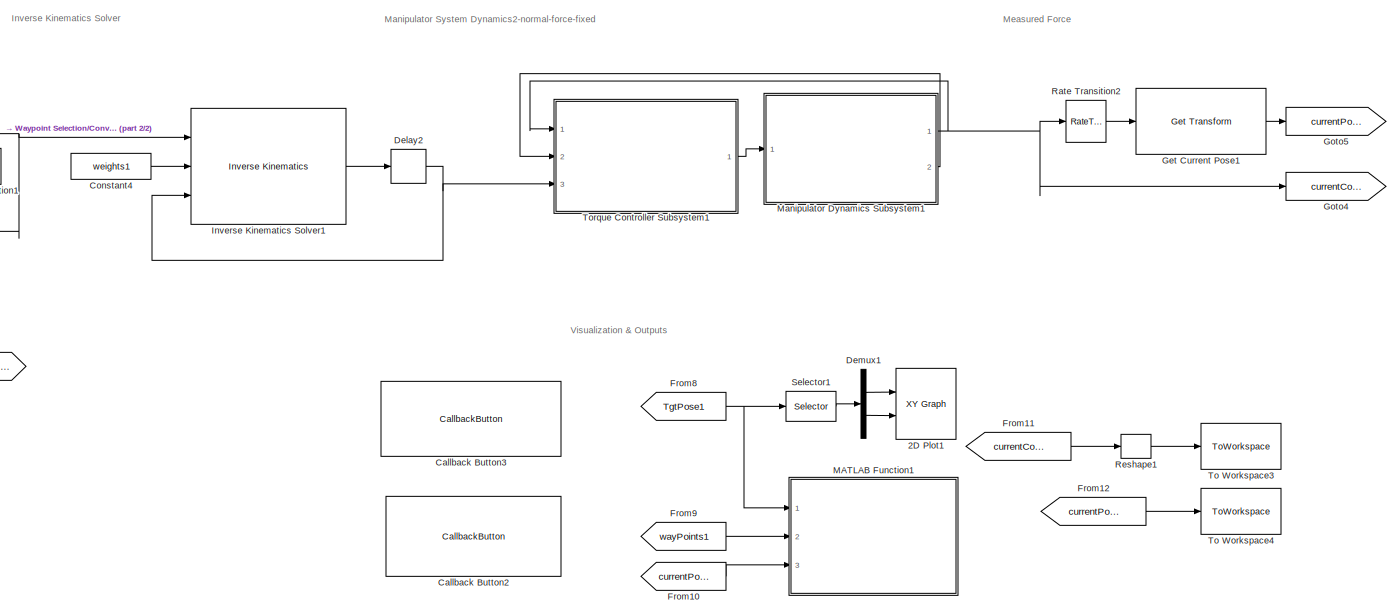
[diagram: root canvas - part 1/2, right side, full height]
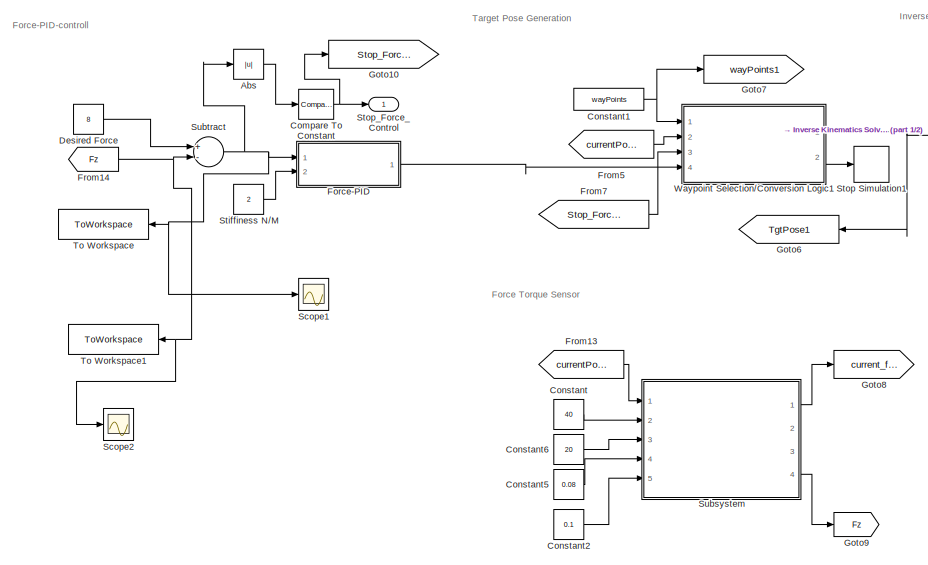
[diagram: root canvas - part 2/2, left side, full height]
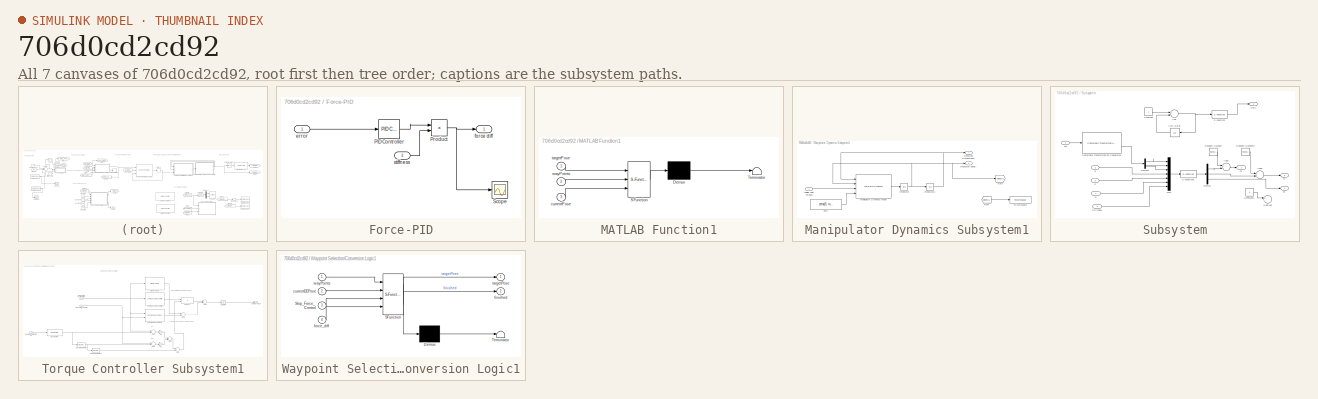
[diagram: thumbnail index - all 7 canvases of the model, root first then tree order]
MODEL slx_706d0cd2cd92
KIND model
CONFIG AbsTol = auto
CONFIG EnableMultiTasking = off
CONFIG FixedStep = Ts
CONFIG MaxStep = auto
CONFIG MinStep = auto
CONFIG PostLoadFcn = robot=importrobot('demo.urdf');\nrobot.DataFormat = 'column';\n\nI = imread('coins.png');\nimageOrigin = [40,20,0.08];\nscale = .15;\n
CONFIG RelTol = 1e-3
CONFIG SampleTimeConstraint = Unconstrained
CONFIG Solver = ode3
CONFIG SolverName = ode3
CONFIG StartTime = 0.0
CONFIG StopTime = 20
WORKSPACE source: mxarray member
WORKSPACE I = [49 47 48 48 48 48 48 51 50 51 50 47 ... (73800 elements, 246x300)]
WORKSPACE Ts = 0.01
WORKSPACE filterConst = 0.08
WORKSPACE force_range = [0.8 0.9]
WORKSPACE imageOrigin = [0.4 0.2 0.08]
WORKSPACE initTargetPose = [-1 0 -1.22464679915e-16 0 0 1 0 0 1.22464679915e-16 0 -1 0 ... (16 elements, 4x4)]
WORKSPACE q0 = [0.422405030154 0 -1.22880122285 0]
WORKSPACE robot: robotics.RigidBodyTree (value not decoded)
WORKSPACE scale = 0.0015
WORKSPACE wayPoints = [0 0 0 0 0 0 0 0 0 0 0 0 ... (1212 elements, 202x6)]
WORKSPACE weights = [1 1 1 1]
WORKSPACE weights1 = [1 1 1 1 1 1]
BLOCK [Reference] 2D Plot1  REF=simulink/Sinks/XY Graph
  Ports = [2]
  SourceBlock = simulink/Sinks/XY Graph
  SourceProductBaseCode = SL
  SourceProductName = Simulink
  SourceType = XY scope.
BLOCK [Abs] Abs
  SaturateOnIntegerOverflow = off
BLOCK [CallbackButton] Callback Button2
  ButtonText = Show Image Processing Used for Waypoint Generation
  ClickFcn = f1 = figure(1);\nf1.Position = [158 253 953 335];\nI1 = imread('coins.png');\nI2 = imread('coinBoundaries.png');\n\nsubplot(1,2,1)\nimshow(I1, 'Border', 'tight')\ntitle('Original Image')\n\nsubplot(1,2,2)\nimshow(I2, 'Border', 'tight')\ntitle('Processed Image with Boundary Detection')
BLOCK [CallbackButton] Callback Button3
  ButtonText = Visualize Model Output with Manipulator Mesh
  ClickFcn = if exist('jointData1', 'var') \n    exampleHelperVisualizeIK(I, jointData1, poseData1, sawyer, imageOrigin, scale);\nelse\n    sim(gcs)\n    exampleHelperVisualizeIK(I, jointData1, poseData1, sawyer, imageOrigin, scale);\nend
BLOCK [Reference] Compare To Constant  REF=simulink/Logic and Bit
Operations/Compare
To Constant
  Ports = [1, 1]
  SourceBlock = simulink/Logic and Bit\nOperations/Compare\nTo Constant
  SourceProductBaseCode = SL
  SourceProductName = Simulink
  SourceType = Compare To Constant
BLOCK [Constant] Constant
  Value = 40
BLOCK [Constant] Constant1
  Value = wayPoints
BLOCK [Constant] Constant2
  Value = 0.1
BLOCK [Constant] Constant4
  Value = weights1
BLOCK [Constant] Constant5
  Value = 0.08
BLOCK [Constant] Constant6
  Value = 20
BLOCK [Delay] Delay2
  DelayLength = 1
  InitialCondition = q0
  InputPortMap = u0
  Ports = [1, 1]
BLOCK [Demux] Demux1
  DisplayOption = bar
  Outputs = 2
  Ports = [1, 2]
BLOCK [Constant] Desired Force
  Value = 8
BLOCK [SubSystem] Force-PID
  Ports = [2, 1]
  RequestExecContextInheritance = off
  TreatAsAtomicUnit = on
BLOCK [Reference] Force-PID/PID Controller  REF=simulink/Continuous/PID Controller
  Ports = [1, 1]
  SourceBlock = simulink/Continuous/PID Controller
  SourceProductBaseCode = SL
  SourceProductName = Simulink
  SourceType = PID 1dof
BLOCK [Product] Force-PID/Product
  InputSameDT = off
  OutDataTypeStr = Inherit: Inherit via internal rule
  Ports = [2, 1]
  RndMeth = Floor
  SaturateOnIntegerOverflow = off
BLOCK [Scope] Force-PID/Scope
  Floating = off
  NumInputPorts = 1
  Ports = [1]
  ScopeSpecificationString = Simulink.scopes.TimeScopeBlockCfg('CurrentConfiguration', extmgr.ConfigurationSet(extmgr.Configuration('Core','General UI',true),extmgr.Configuration('Core','Source UI',true),extmgr.Configuration('Sources','WiredSimulink',true,'DataLoggingVariableName','ScopeData1'),extmgr.Configuration('Visuals','Time Domain',true,'SerializedDisplays',{struct('MinYLimReal','-11.94328','MaxYLimReal','107.96905','Y...<+1409ch>
BLOCK [Inport] Force-PID/error
  IconDisplay = Port number
BLOCK [Outport] Force-PID/force diff
  IconDisplay = Port number
BLOCK [Inport] Force-PID/stiffness
  IconDisplay = Port number
  Port = 2
BLOCK [From] From10
  GotoTag = currentPose1
BLOCK [From] From11
  GotoTag = currentConfig1
BLOCK [From] From12
  GotoTag = currentPose1
BLOCK [From] From13
  GotoTag = currentPose1
BLOCK [From] From14
  GotoTag = Fz
  TagVisibility = global
BLOCK [From] From5
  GotoTag = currentPose1
BLOCK [From] From7
  GotoTag = Stop_Force_Control
BLOCK [From] From8
  GotoTag = TgtPose1
BLOCK [From] From9
  GotoTag = wayPoints1
BLOCK [Reference] Get Current Pose1  REF=robotmaniplib/Get Transform
  Ports = [1, 1]
  SourceBlock = robotmaniplib/Get Transform
  SourceProductBaseCode = RO
  SourceProductName = Robotics System Toolbox
  SourceType = Get Transform
BLOCK [Goto] Goto10
  GotoTag = Stop_Force_Control
BLOCK [Goto] Goto4
  GotoTag = currentConfig1
BLOCK [Goto] Goto5
  GotoTag = currentPose1
BLOCK [Goto] Goto6
  GotoTag = TgtPose1
BLOCK [Goto] Goto7
  GotoTag = wayPoints1
BLOCK [Goto] Goto8
  GotoTag = current_force
  TagVisibility = global
BLOCK [Goto] Goto9
  GotoTag = Fz
  TagVisibility = global
BLOCK [Reference] Inverse Kinematics Solver1  REF=robotmaniplib/Inverse Kinematics
  Ports = [3, 1]
  SourceBlock = robotmaniplib/Inverse Kinematics
  SourceProductBaseCode = RO
  SourceProductName = Robotics System Toolbox
  SourceType = Inverse Kinematics
BLOCK [SubSystem] MATLAB Function1
  ErrorFcn = Stateflow.Translate.translate
  PermitHierarchicalResolution = ExplicitOnly
  Ports = [3]
  RequestExecContextInheritance = off
  SFBlockType = MATLAB Function
  SystemSampleTime = .1
  TreatAsAtomicUnit = on
BLOCK [Demux] MATLAB Function1/ Demux 
  Outputs = 1
  Ports = [1, 1]
BLOCK [S-Function] MATLAB Function1/ SFunction 
  EnableBusSupport = on
  FunctionName = sf_sfun
  PortCounts = [3 1]
  Ports = [3, 1]
  SFcnIsStateOwnerBlock = off
  SFunctionDeploymentMode = off
  Tag = Stateflow S-Function 4
BLOCK [Terminator] MATLAB Function1/ Terminator 
BLOCK [Inport] MATLAB Function1/currentPose
  IconDisplay = Port number
  Port = 3
BLOCK [Inport] MATLAB Function1/targetPose
  IconDisplay = Port number
BLOCK [Inport] MATLAB Function1/wayPoints
  IconDisplay = Port number
  Port = 2
BLOCK [SubSystem] Manipulator Dynamics Subsystem1
  Ports = [1, 2]
  RequestExecContextInheritance = off
BLOCK [Inport] Manipulator Dynamics Subsystem1/Applied Joint Torques
  IconDisplay = Port number
BLOCK [From] Manipulator Dynamics Subsystem1/From
  GotoTag = Velocity1
BLOCK [Goto] Manipulator Dynamics Subsystem1/Goto
  GotoTag = Velocity1
BLOCK [Integrator] Manipulator Dynamics Subsystem1/Integrator
  Ports = [1, 1]
BLOCK [Integrator] Manipulator Dynamics Subsystem1/Integrator1
  InitialCondition = q0
  Ports = [1, 1]
BLOCK [Reference] Manipulator Dynamics Subsystem1/Manipulator Dynamics Model  REF=robotmaniplib/Forward Dynamics
  Ports = [4, 1]
  SourceBlock = robotmaniplib/Forward Dynamics
  SourceProductBaseCode = RO
  SourceProductName = Robotics System Toolbox
  SourceType = Forward Dynamics
BLOCK [Outport] Manipulator Dynamics Subsystem1/Measured Configuration
  IconDisplay = Port number
  VectorParamsAs1DForOutWhenUnconnected = off
BLOCK [Outport] Manipulator Dynamics Subsystem1/Measured Velocity
  IconDisplay = Port number
  Port = 2
  VectorParamsAs1DForOutWhenUnconnected = off
BLOCK [ToWorkspace] Manipulator Dynamics Subsystem1/To Workspace
  FixptAsFi = on
  MaxDataPoints = inf
  Ports = [1]
  SampleTime = -1
  SaveFormat = Timeseries
  VariableName = Velocity
BLOCK [Constant] Manipulator Dynamics Subsystem1/Zero
  OutDataTypeStr = Inherit: Inherit via back propagation
  Value = zeros(6, robot.NumBodies)
BLOCK [RateTransition] Rate Transition2
BLOCK [Reshape] Reshape1
  Ports = [1, 1]
BLOCK [Scope] Scope1
  Floating = off
  NumInputPorts = 1
  Ports = [1]
  ScopeSpecificationString = Simulink.scopes.TimeScopeBlockCfg('CurrentConfiguration', extmgr.ConfigurationSet(extmgr.Configuration('Core','General UI',true),extmgr.Configuration('Core','Source UI',true),extmgr.Configuration('Sources','WiredSimulink',true,'DataLoggingVariableName','ScopeData2'),extmgr.Configuration('Visuals','Time Domain',true,'SerializedDisplays',{struct('MinYLimReal','7.99074','MaxYLimReal','7.99687','YLabe...<+1396ch>
BLOCK [Scope] Scope2
  Floating = off
  NumInputPorts = 1
  Ports = [1]
  ScopeSpecificationString = Simulink.scopes.TimeScopeBlockCfg('CurrentConfiguration', extmgr.ConfigurationSet(extmgr.Configuration('Core','General UI',true),extmgr.Configuration('Core','Source UI',true),extmgr.Configuration('Sources','WiredSimulink',true,'DataLoggingVariableName','ScopeData3'),extmgr.Configuration('Visuals','Time Domain',true,'SerializedDisplays',{struct('MinYLimReal','0.00094','MaxYLimReal','0.01012','YLabe...<+1414ch>
BLOCK [Selector] Selector1
  IndexOptions = Index vector (dialog),Index vector (dialog)
  Indices = [1 2],4
  NumberOfDimensions = 2
  OutputSizes = 1,1
  Ports = [1, 1]
BLOCK [Constant] Stiffiness N//M
  Value = 2
BLOCK [Stop] Stop Simulation1
BLOCK [Outport] Stop_Force_Control 
  IconDisplay = Port number
  VectorParamsAs1DForOutWhenUnconnected = off
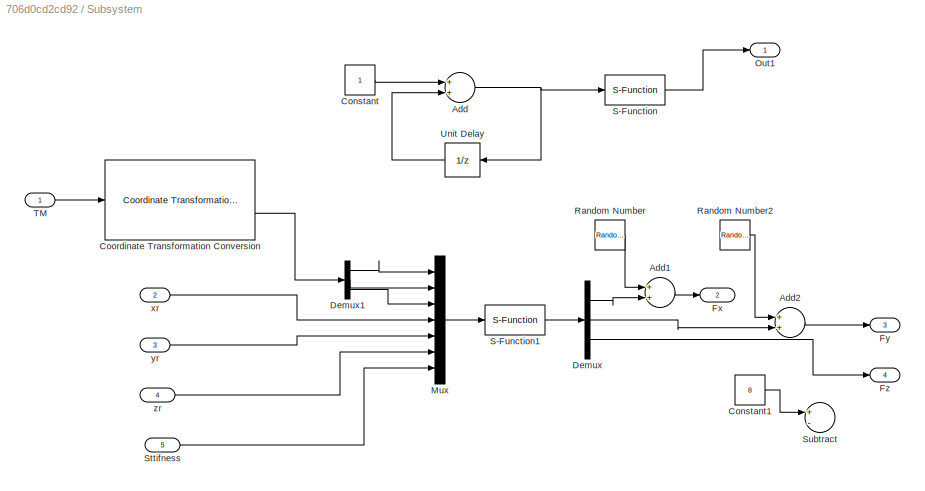
BLOCK [SubSystem] Subsystem
  Ports = [5, 4]
  RequestExecContextInheritance = off
BLOCK [Sum] Subsystem/Add
  InputSameDT = off
  OutDataTypeStr = Inherit: Inherit via internal rule
  Ports = [2, 1]
  SaturateOnIntegerOverflow = off
BLOCK [Sum] Subsystem/Add1
  InputSameDT = off
  OutDataTypeStr = Inherit: Inherit via internal rule
  Ports = [2, 1]
  SaturateOnIntegerOverflow = off
BLOCK [Sum] Subsystem/Add2
  InputSameDT = off
  OutDataTypeStr = Inherit: Inherit via internal rule
  Ports = [2, 1]
  SaturateOnIntegerOverflow = off
BLOCK [Constant] Subsystem/Constant
BLOCK [Constant] Subsystem/Constant1
  Value = 8
BLOCK [Reference] Subsystem/Coordinate Transformation Conversion  REF=robotcorelib/Coordinate Transformation Conversion
  Ports = [1, 2]
  SourceBlock = robotcorelib/Coordinate Transformation Conversion
  SourceProductBaseCode = RO
  SourceProductName = Robotics System Toolbox
  SourceType = robotics.slcore.internal.block.CoordinateTransformationConversion
BLOCK [Demux] Subsystem/Demux
  DisplayOption = bar
  Outputs = 3
  Ports = [1, 3]
BLOCK [Demux] Subsystem/Demux1
  DisplayOption = bar
  Outputs = 3
  Ports = [1, 3]
BLOCK [Outport] Subsystem/Fx
  IconDisplay = Port number
  Port = 2
BLOCK [Outport] Subsystem/Fy
  IconDisplay = Port number
  Port = 3
BLOCK [Outport] Subsystem/Fz
  IconDisplay = Port number
  Port = 4
BLOCK [Mux] Subsystem/Mux
  DisplayOption = bar
  Inputs = 7
  Ports = [7, 1]
BLOCK [Outport] Subsystem/Out1
  IconDisplay = Port number
BLOCK [RandomNumber] Subsystem/Random Number
  SampleTime = 0.01
  Variance = 0.001
BLOCK [RandomNumber] Subsystem/Random Number2
  SampleTime = 0.01
  Variance = 0.001
BLOCK [S-Function] Subsystem/S-Function
  EnableBusSupport = off
  FunctionName = funtmpl
  Ports = [1, 1]
  SFcnIsStateOwnerBlock = off
  SFunctionDeploymentMode = off
BLOCK [S-Function] Subsystem/S-Function1
  EnableBusSupport = off
  FunctionName = contactforce
  Ports = [1, 1]
  SFcnIsStateOwnerBlock = off
  SFunctionDeploymentMode = off
BLOCK [Inport] Subsystem/Sttifness 
  IconDisplay = Port number
  Port = 5
BLOCK [Sum] Subsystem/Subtract
  InputSameDT = off
  Inputs = +-
  OutDataTypeStr = Inherit: Inherit via internal rule
  Ports = [2, 1]
  SaturateOnIntegerOverflow = off
BLOCK [Inport] Subsystem/TM
  IconDisplay = Port number
BLOCK [UnitDelay] Subsystem/Unit Delay
  HasFrameUpgradeWarning = on
  SampleTime = -1
BLOCK [Inport] Subsystem/xr
  IconDisplay = Port number
  Port = 2
BLOCK [Inport] Subsystem/yr
  IconDisplay = Port number
  Port = 3
BLOCK [Inport] Subsystem/zr
  IconDisplay = Port number
  Port = 4
BLOCK [Sum] Subtract
  InputSameDT = off
  Inputs = +-
  OutDataTypeStr = Inherit: Inherit via internal rule
  Ports = [2, 1]
  SaturateOnIntegerOverflow = off
BLOCK [ToWorkspace] To Workspace
  FixptAsFi = on
  MaxDataPoints = inf
  Ports = [1]
  SampleTime = -1
  SaveFormat = Timeseries
  VariableName = simout
BLOCK [ToWorkspace] To Workspace1
  FixptAsFi = on
  MaxDataPoints = inf
  Ports = [1]
  SampleTime = -1
  SaveFormat = Timeseries
  VariableName = simout1
BLOCK [ToWorkspace] To Workspace3
  FixptAsFi = on
  MaxDataPoints = inf
  Ports = [1]
  SampleTime = -1
  Save2DSignal = 2-D array (concatenate along first dimension)
  VariableName = jointData1
BLOCK [ToWorkspace] To Workspace4
  FixptAsFi = on
  MaxDataPoints = inf
  Ports = [1]
  SampleTime = -1
  VariableName = poseData1
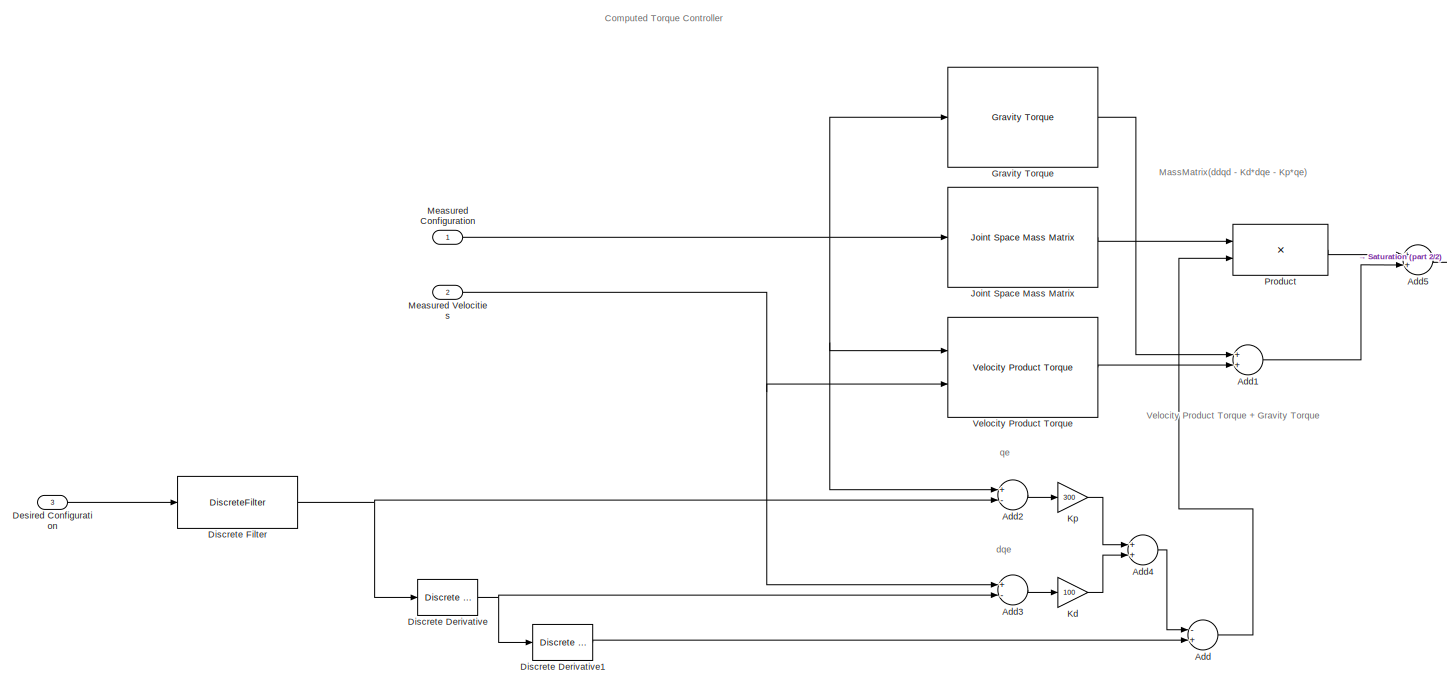
[diagram: Torque Controller Subsystem1 - part 1/2, most of the canvas]
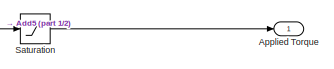
[diagram: Torque Controller Subsystem1 - part 2/2, middle right region]
BLOCK [SubSystem] Torque Controller Subsystem1
  Ports = [3, 1]
  RequestExecContextInheritance = off
BLOCK [Sum] Torque Controller Subsystem1/Add
  InputSameDT = off
  Inputs = -+
  OutDataTypeStr = Inherit: Inherit via internal rule
  Ports = [2, 1]
  SaturateOnIntegerOverflow = off
BLOCK [Sum] Torque Controller Subsystem1/Add1
  InputSameDT = off
  OutDataTypeStr = Inherit: Inherit via internal rule
  Ports = [2, 1]
  SaturateOnIntegerOverflow = off
BLOCK [Sum] Torque Controller Subsystem1/Add2
  InputSameDT = off
  Inputs = +-
  OutDataTypeStr = Inherit: Inherit via internal rule
  Ports = [2, 1]
  SaturateOnIntegerOverflow = off
BLOCK [Sum] Torque Controller Subsystem1/Add3
  InputSameDT = off
  Inputs = +-
  OutDataTypeStr = Inherit: Inherit via internal rule
  Ports = [2, 1]
  SaturateOnIntegerOverflow = off
BLOCK [Sum] Torque Controller Subsystem1/Add4
  InputSameDT = off
  OutDataTypeStr = Inherit: Inherit via internal rule
  Ports = [2, 1]
  SaturateOnIntegerOverflow = off
BLOCK [Sum] Torque Controller Subsystem1/Add5
  InputSameDT = off
  OutDataTypeStr = Inherit: Inherit via internal rule
  Ports = [2, 1]
  SaturateOnIntegerOverflow = off
BLOCK [Outport] Torque Controller Subsystem1/Applied Torque
  IconDisplay = Port number
  VectorParamsAs1DForOutWhenUnconnected = off
BLOCK [Inport] Torque Controller Subsystem1/Desired Configuration
  IconDisplay = Port number
  Port = 3
BLOCK [Reference] Torque Controller Subsystem1/Discrete Derivative  REF=simulink/Discrete/Discrete Derivative
  Ports = [1, 1]
  SourceBlock = simulink/Discrete/Discrete Derivative
  SourceProductBaseCode = SL
  SourceProductName = Simulink
  SourceType = Discrete Derivative
BLOCK [Reference] Torque Controller Subsystem1/Discrete Derivative1  REF=simulink/Discrete/Discrete Derivative
  Ports = [1, 1]
  SourceBlock = simulink/Discrete/Discrete Derivative
  SourceProductBaseCode = SL
  SourceProductName = Simulink
  SourceType = Discrete Derivative
BLOCK [DiscreteFilter] Torque Controller Subsystem1/Discrete Filter
  Denominator = [1]
  InitialStates = repmat(q0',19,1)
  InputPortMap = u0
  Numerator = ones(1,20)*1/20
  Ports = [1, 1]
BLOCK [Reference] Torque Controller Subsystem1/Gravity Torque  REF=robotmaniplib/Gravity Torque
  Ports = [1, 1]
  SourceBlock = robotmaniplib/Gravity Torque
  SourceProductBaseCode = RO
  SourceProductName = Robotics System Toolbox
  SourceType = Gravity Torque
BLOCK [Reference] Torque Controller Subsystem1/Joint Space Mass Matrix  REF=robotmaniplib/Joint Space Mass Matrix
  Ports = [1, 1]
  SourceBlock = robotmaniplib/Joint Space Mass Matrix
  SourceProductBaseCode = RO
  SourceProductName = Robotics System Toolbox
  SourceType = Joint Space Mass Matrix
BLOCK [Gain] Torque Controller Subsystem1/Kd
  Gain = 100
  OutDataTypeStr = Inherit: Inherit via internal rule
  ParamDataTypeStr = Inherit: Inherit via internal rule
  SaturateOnIntegerOverflow = off
BLOCK [Gain] Torque Controller Subsystem1/Kp
  Gain = 300
  OutDataTypeStr = Inherit: Inherit via internal rule
  ParamDataTypeStr = Inherit: Inherit via internal rule
  SaturateOnIntegerOverflow = off
BLOCK [Inport] Torque Controller Subsystem1/Measured Configuration
  IconDisplay = Port number
BLOCK [Inport] Torque Controller Subsystem1/Measured Velocities
  IconDisplay = Port number
  Port = 2
BLOCK [Product] Torque Controller Subsystem1/Product
  InputSameDT = off
  Multiplication = Matrix(*)
  OutDataTypeStr = Inherit: Inherit via internal rule
  Ports = [2, 1]
  RndMeth = Floor
  SaturateOnIntegerOverflow = off
BLOCK [Saturate] Torque Controller Subsystem1/Saturation
  InputPortMap = u0
  LowerLimit = -100
  Ports = [1, 1]
  UpperLimit = 100
BLOCK [Reference] Torque Controller Subsystem1/Velocity Product Torque  REF=robotmaniplib/Velocity Product Torque
  Ports = [2, 1]
  SourceBlock = robotmaniplib/Velocity Product Torque
  SourceProductBaseCode = RO
  SourceProductName = Robotics System Toolbox
  SourceType = Velocity Product Torque
BLOCK [SubSystem] Waypoint Selection//Conversion Logic1
  ErrorFcn = Stateflow.Translate.translate
  PermitHierarchicalResolution = ExplicitOnly
  Ports = [4, 2]
  RequestExecContextInheritance = off
  SFBlockType = Chart
  TreatAsAtomicUnit = on
BLOCK [Demux] Waypoint Selection//Conversion Logic1/ Demux 
  Outputs = 1
  Ports = [1, 1]
BLOCK [S-Function] Waypoint Selection//Conversion Logic1/ SFunction 
  EnableBusSupport = on
  FunctionName = sf_sfun
  PortCounts = [4 3]
  Ports = [4, 3]
  SFcnIsStateOwnerBlock = off
  SFunctionDeploymentMode = off
  Tag = Stateflow S-Function 1
BLOCK [Terminator] Waypoint Selection//Conversion Logic1/ Terminator 
BLOCK [Inport] Waypoint Selection//Conversion Logic1/Stop_Force_Control
  IconDisplay = Port number
  Port = 3
BLOCK [Inport] Waypoint Selection//Conversion Logic1/currentEEPose
  IconDisplay = Port number
  Port = 2
BLOCK [Outport] Waypoint Selection//Conversion Logic1/finished
  IconDisplay = Port number
  Port = 2
  VectorParamsAs1DForOutWhenUnconnected = off
BLOCK [Inport] Waypoint Selection//Conversion Logic1/force_diff
  IconDisplay = Port number
  Port = 4
BLOCK [Outport] Waypoint Selection//Conversion Logic1/targetPose
  IconDisplay = Port number
  VectorParamsAs1DForOutWhenUnconnected = off
BLOCK [Inport] Waypoint Selection//Conversion Logic1/wayPoints
  IconDisplay = Port number
ANNOTATION (root): Force Torque Sensor
ANNOTATION (root): Force-PID-controll
ANNOTATION (root): Inverse Kinematics Solver
ANNOTATION (root): Manipulator System Dynamics2-normal-force-fixed
ANNOTATION (root): Measured Force
ANNOTATION (root): Target Pose Generation
ANNOTATION (root): Visualization & Outputs
ANNOTATION Torque Controller Subsystem1: qe
ANNOTATION Torque Controller Subsystem1: dqe
ANNOTATION Torque Controller Subsystem1: MassMatrix(ddqd - Kd*dqe - Kp*qe)
ANNOTATION Torque Controller Subsystem1: Velocity Product Torque + Gravity Torque
ANNOTATION Torque Controller Subsystem1: Computed Torque Controller
LINE Abs:1 -> Compare To Constant:1
NET Compare To Constant:1 -> Goto10:1, Stop_Force_Control :1
NET Constant1:1 -> Goto7:1, Waypoint Selection//Conversion Logic1:1
LINE Constant2:1 -> Subsystem:5
LINE Constant4:1 -> Inverse Kinematics Solver1:2
LINE Constant5:1 -> Subsystem:4
LINE Constant6:1 -> Subsystem:3
LINE Constant:1 -> Subsystem:2
NET Delay2:1 -> Inverse Kinematics Solver1:3, Torque Controller Subsystem1:3
LINE Demux1:1 -> 2D Plot1:1
LINE Demux1:2 -> 2D Plot1:2
LINE Desired Force:1 -> Subtract:1
LINE Force-PID/PID Controller:1 -> Force-PID/Product:1
NET Force-PID/Product:1 -> Force-PID/Scope:1, Force-PID/force diff:1
LINE Force-PID/error:1 -> Force-PID/PID Controller:1
LINE Force-PID/stiffness:1 -> Force-PID/Product:2
LINE Force-PID:1 -> Waypoint Selection//Conversion Logic1:4
LINE From10:1 -> MATLAB Function1:3
LINE From11:1 -> Reshape1:1
LINE From12:1 -> To Workspace4:1
LINE From13:1 -> Subsystem:1
NET From14:1 -> Scope2:1, Subtract:2, To Workspace1:1
LINE From5:1 -> Waypoint Selection//Conversion Logic1:2
LINE From7:1 -> Waypoint Selection//Conversion Logic1:3
NET From8:1 -> MATLAB Function1:1, Selector1:1
LINE From9:1 -> MATLAB Function1:2
LINE Get Current Pose1:1 -> Goto5:1
LINE Inverse Kinematics Solver1:1 -> Delay2:1
LINE Manipulator Dynamics Subsystem1/Applied Joint Torques:1 -> Manipulator Dynamics Subsystem1/Manipulator Dynamics Model:3
LINE Manipulator Dynamics Subsystem1/From:1 -> Manipulator Dynamics Subsystem1/To Workspace:1
NET Manipulator Dynamics Subsystem1/Integrator1:1 -> Manipulator Dynamics Subsystem1/Manipulator Dynamics Model:1, Manipulator Dynamics Subsystem1/Measured Configuration:1
NET Manipulator Dynamics Subsystem1/Integrator:1 -> Manipulator Dynamics Subsystem1/Goto:1, Manipulator Dynamics Subsystem1/Integrator1:1, Manipulator Dynamics Subsystem1/Manipulator Dynamics Model:2, Manipulator Dynamics Subsystem1/Measured Velocity:1
LINE Manipulator Dynamics Subsystem1/Manipulator Dynamics Model:1 -> Manipulator Dynamics Subsystem1/Integrator:1
LINE Manipulator Dynamics Subsystem1/Zero:1 -> Manipulator Dynamics Subsystem1/Manipulator Dynamics Model:4
NET Manipulator Dynamics Subsystem1:1 -> Goto4:1, Rate Transition2:1, Torque Controller Subsystem1:1
LINE Manipulator Dynamics Subsystem1:2 -> Torque Controller Subsystem1:2
LINE Rate Transition2:1 -> Get Current Pose1:1
LINE Reshape1:1 -> To Workspace3:1
LINE Selector1:1 -> Demux1:1
LINE Stiffiness N//M:1 -> Force-PID:2
LINE Subsystem/Add1:1 -> Subsystem/Fx:1
LINE Subsystem/Add2:1 -> Subsystem/Fy:1
NET Subsystem/Add:1 -> Subsystem/S-Function:1, Subsystem/Unit Delay:1
LINE Subsystem/Constant1:1 -> Subsystem/Subtract:1
LINE Subsystem/Constant:1 -> Subsystem/Add:1
LINE Subsystem/Coordinate Transformation Conversion:2 -> Subsystem/Demux1:1
LINE Subsystem/Demux1:1 -> Subsystem/Mux:1
LINE Subsystem/Demux1:2 -> Subsystem/Mux:2
LINE Subsystem/Demux1:3 -> Subsystem/Mux:3
LINE Subsystem/Demux:1 -> Subsystem/Add1:2
LINE Subsystem/Demux:2 -> Subsystem/Add2:2
LINE Subsystem/Demux:3 -> Subsystem/Fz:1
LINE Subsystem/Mux:1 -> Subsystem/S-Function1:1
LINE Subsystem/Random Number2:1 -> Subsystem/Add2:1
LINE Subsystem/Random Number:1 -> Subsystem/Add1:1
LINE Subsystem/S-Function1:1 -> Subsystem/Demux:1
LINE Subsystem/S-Function:1 -> Subsystem/Out1:1
LINE Subsystem/Sttifness :1 -> Subsystem/Mux:7
LINE Subsystem/TM:1 -> Subsystem/Coordinate Transformation Conversion:1
LINE Subsystem/Unit Delay:1 -> Subsystem/Add:2
LINE Subsystem/xr:1 -> Subsystem/Mux:4
LINE Subsystem/yr:1 -> Subsystem/Mux:5
LINE Subsystem/zr:1 -> Subsystem/Mux:6
LINE Subsystem:1 -> Goto8:1
LINE Subsystem:4 -> Goto9:1
NET Subtract:1 -> Abs:1, Force-PID:1, Scope1:1, To Workspace:1
LINE Torque Controller Subsystem1/Add1:1 -> Torque Controller Subsystem1/Add5:2
LINE Torque Controller Subsystem1/Add2:1 -> Torque Controller Subsystem1/Kp:1
LINE Torque Controller Subsystem1/Add3:1 -> Torque Controller Subsystem1/Kd:1
LINE Torque Controller Subsystem1/Add4:1 -> Torque Controller Subsystem1/Add:1
LINE Torque Controller Subsystem1/Add5:1 -> Torque Controller Subsystem1/Saturation:1
LINE Torque Controller Subsystem1/Add:1 -> Torque Controller Subsystem1/Product:2
LINE Torque Controller Subsystem1/Desired Configuration:1 -> Torque Controller Subsystem1/Discrete Filter:1
LINE Torque Controller Subsystem1/Discrete Derivative1:1 -> Torque Controller Subsystem1/Add:2
NET Torque Controller Subsystem1/Discrete Derivative:1 -> Torque Controller Subsystem1/Add3:2, Torque Controller Subsystem1/Discrete Derivative1:1
NET Torque Controller Subsystem1/Discrete Filter:1 -> Torque Controller Subsystem1/Add2:2, Torque Controller Subsystem1/Discrete Derivative:1
LINE Torque Controller Subsystem1/Gravity Torque:1 -> Torque Controller Subsystem1/Add1:1
LINE Torque Controller Subsystem1/Joint Space Mass Matrix:1 -> Torque Controller Subsystem1/Product:1
LINE Torque Controller Subsystem1/Kd:1 -> Torque Controller Subsystem1/Add4:2
LINE Torque Controller Subsystem1/Kp:1 -> Torque Controller Subsystem1/Add4:1
NET Torque Controller Subsystem1/Measured Configuration:1 -> Torque Controller Subsystem1/Add2:1, Torque Controller Subsystem1/Gravity Torque:1, Torque Controller Subsystem1/Joint Space Mass Matrix:1, Torque Controller Subsystem1/Velocity Product Torque:1
NET Torque Controller Subsystem1/Measured Velocities:1 -> Torque Controller Subsystem1/Add3:1, Torque Controller Subsystem1/Velocity Product Torque:2
LINE Torque Controller Subsystem1/Product:1 -> Torque Controller Subsystem1/Add5:1
LINE Torque Controller Subsystem1/Saturation:1 -> Torque Controller Subsystem1/Applied Torque:1
LINE Torque Controller Subsystem1/Velocity Product Torque:1 -> Torque Controller Subsystem1/Add1:2
LINE Torque Controller Subsystem1:1 -> Manipulator Dynamics Subsystem1:1
NET Waypoint Selection//Conversion Logic1:1 -> Goto6:1, Inverse Kinematics Solver1:1
LINE Waypoint Selection//Conversion Logic1:2 -> Stop Simulation1:1
note: NET lines group one-source signal fan-out (src -> all destinations, sorted); 1:1 wires keep LINE
CHART Waypoint Selection//Conversion Logic1 states=0 transitions=9
CHART MATLAB Function1 states=1 transitions=1
  STATE_LABEL 'eML_blk_kernel()'
  STATE_LABEL "SCRIPT:\nfunction waypointTracking(targetPose, wayPoints, currentPose)\n%#codegen\n\npersistent f1 a1\n\nif isempty(f1)\n    f1 = figure;\n    title('Waypoint Tracking-force');\n    a1 = axes;\n    axis(a1, [\t0.4,0.8, 0.2,0.635, 0.05,0.3]);\n    set(f1, 'Visible', 'on');\nend\n\ntargetPoint = targetPose(1:3,end);\ncurrentPoint = currentPose(1:3,end);\n\nplot3(a1,wayPoints(:,1), wayPoints(:,2), wayPoints(:,3), 'b.'...<+204ch>"
